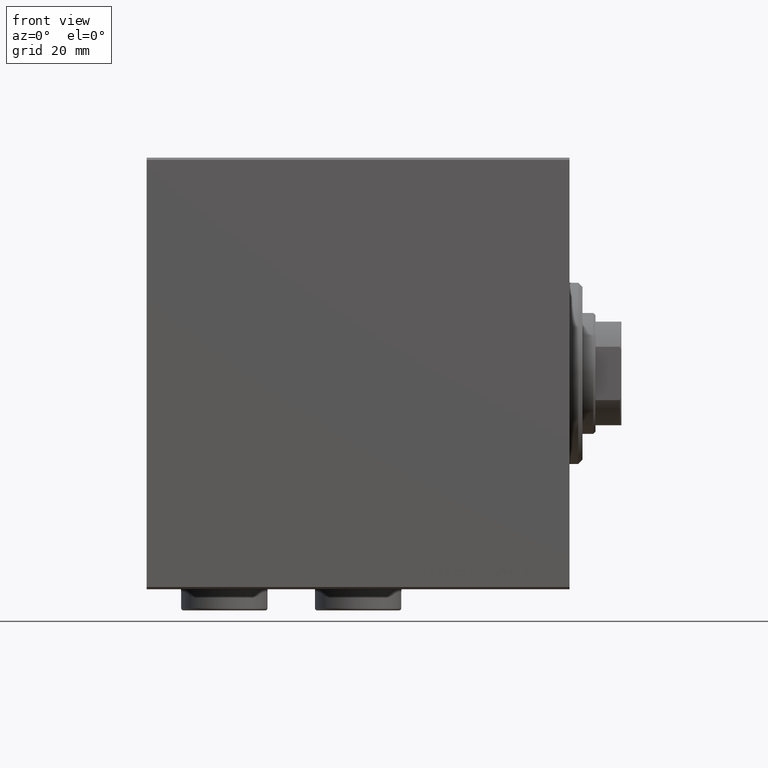
[diagram: clean part render]
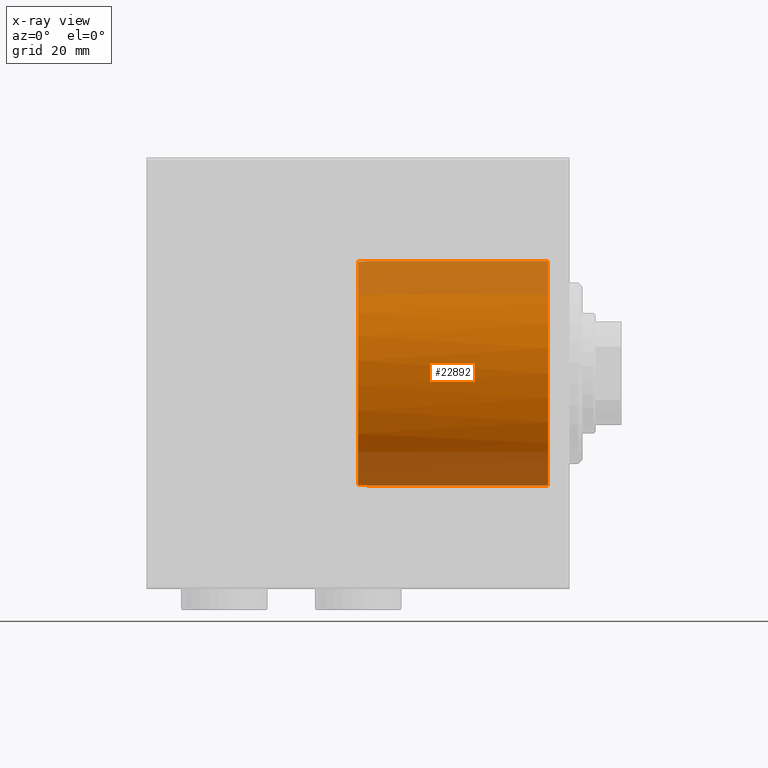
[diagram: x-ray — body ghosted, one internal face saturated and labeled with its STEP entity id]
A machine part, front view, then the same camera in x-ray: the body is ghosted and one INTERNAL B-rep face — a face not visible from any outside direction — is saturated and labeled: STEP entity #22892.
In plain terms, the highlighted cylindrical surface (partial cylindrical patch) has radius 26 mm, axis along (1, -0, 0).
Its self-contained STEP definition (entity closure, byte-faithful):
#938 = AXIS2_PLACEMENT_3D ( 'NONE', #45627, #25832, #28865 ) ;
#1554 = CYLINDRICAL_SURFACE ( 'NONE', #29709, 26.00000000000000355 ) ;
#1577 = CARTESIAN_POINT ( 'NONE',  ( 46.62795462308692152, -0.8061857280105739765, 25.98793459048009424 ) ) ;
#2124 = CARTESIAN_POINT ( 'NONE',  ( 46.50000000000000711, -0.1632048367001796285, -26.00000000000001066 ) ) ;
#2810 = CARTESIAN_POINT ( 'NONE',  ( 47.74713917450439027, -2.169571424906405532, -25.90948189110790167 ) ) ;
#3056 = B_SPLINE_CURVE_WITH_KNOTS ( 'NONE', 3,
 ( #38118, #37892, #6058, #27439, #41632, #6285, #2810, #23034, #19756, #16964, #31153, #45349, #37211, #5389, #19538, #33946, #2124, #30469 ),
 .UNSPECIFIED., .F., .F.,
 ( 4, 2, 2, 2, 2, 2, 2, 2, 4 ),
 ( 0.000000000000000000, 0.0004889038340697617752, 0.0009778076681395235503, 0.001466711502209285325, 0.001955615336279047101, 0.002444519170348808876, 0.002933423004418570651, 0.003422326838488332426, 0.003911230672558094201 ),
 .UNSPECIFIED. ) ;
#3620 = VECTOR ( 'NONE', #7267, 1000.000000000000000 ) ;
#3917 = CARTESIAN_POINT ( 'NONE',  ( 46.50000000000000000, -1.796472939459810184E-23, 26.00000000000000355 ) ) ;
#4698 = DIRECTION ( 'NONE',  ( 0.000000000000000000, 0.000000000000000000, 1.000000000000000000 ) ) ;
#5264 = DIRECTION ( 'NONE',  ( -1.000000000000000000, -0.000000000000000000, -0.000000000000000000 ) ) ;
#5289 = CARTESIAN_POINT ( 'NONE',  ( 47.01297106214286003, -1.526029034057477807, 25.95553860499968124 ) ) ;
#5389 = CARTESIAN_POINT ( 'NONE',  ( 46.62793841299855302, -0.8061310401765081624, -25.98793611466011555 ) ) ;
#6058 = CARTESIAN_POINT ( 'NONE',  ( 48.67213913165271322, -2.483762860601321787, -25.88111169265567213 ) ) ;
#6140 = ORIENTED_EDGE ( 'NONE', *, *, #17082, .T. ) ;
#6285 = CARTESIAN_POINT ( 'NONE',  ( 47.89073077407087453, -2.246416265527503953, -25.90284905351749245 ) ) ;
#6293 = ORIENTED_EDGE ( 'NONE', *, *, #31927, .F. ) ;
#6640 = CARTESIAN_POINT ( 'NONE',  ( 48.67227445165369915, -2.483780978192544620, 25.88110994440602042 ) ) ;
#7267 = DIRECTION ( 'NONE',  ( -1.000000000000000000, -0.000000000000000000, -0.000000000000000000 ) ) ;
#7474 = EDGE_CURVE ( 'NONE', #16384, #23776, #3056, .T. ) ;
#8791 = DIRECTION ( 'NONE',  ( -1.000000000000000000, -0.000000000000000000, -0.000000000000000000 ) ) ;
#9656 = CARTESIAN_POINT ( 'NONE',  ( 46.51583617535392534, -0.3255658700105529824, 25.99846250072058496 ) ) ;
#10798 = CARTESIAN_POINT ( 'NONE',  ( 47.34693974846521769, -1.882544160077678219, 25.93201472526049756 ) ) ;
#10965 = CARTESIAN_POINT ( 'NONE',  ( 5.000000000000000000, 3.184081677783118585E-15, -26.00000000000000355 ) ) ;
#11209 = ORIENTED_EDGE ( 'NONE', *, *, #14772, .T. ) ;
#12890 = CARTESIAN_POINT ( 'NONE',  ( 48.99999999999999289, 0.000000000000000000, 0.000000000000000000 ) ) ;
#14300 = CARTESIAN_POINT ( 'NONE',  ( 47.89086699118785617, -2.246479982575416035, 25.90284346713514907 ) ) ;
#14772 = EDGE_CURVE ( 'NONE', #44195, #15034, #45811, .T. ) ;
#14829 = B_SPLINE_CURVE_WITH_KNOTS ( 'NONE', 3,
 ( #27324, #41515, #9656, #19216, #1577, #15726, #40600, #5289, #21029, #10798, #41750, #17542, #14300, #34983, #31964, #6640, #38469, #45699 ),
 .UNSPECIFIED., .F., .F.,
 ( 4, 2, 2, 2, 2, 2, 2, 2, 4 ),
 ( 0.007820654687069023003, 0.008309569309530018960, 0.008798483931991014917, 0.009287398554452010874, 0.009776313176913006830, 0.01026522779937400279, 0.01075414242183499874, 0.01124305704429599470, 0.01173197166675699066 ),
 .UNSPECIFIED. ) ;
#14904 = DIRECTION ( 'NONE',  ( -1.000000000000000000, 0.000000000000000000, 0.000000000000000000 ) ) ;
#15034 = VERTEX_POINT ( 'NONE', #39020 ) ;
#15726 = CARTESIAN_POINT ( 'NONE',  ( 46.75262534503168865, -1.107177428594329882, 25.97685196186657564 ) ) ;
#16384 = VERTEX_POINT ( 'NONE', #36637 ) ;
#16905 = CARTESIAN_POINT ( 'NONE',  ( 48.99999999999999289, -2.500000000000019540, 25.87952858921506305 ) ) ;
#16964 = CARTESIAN_POINT ( 'NONE',  ( 47.11633526003846839, -1.651783113730551422, -25.94773543709675678 ) ) ;
#17082 = EDGE_CURVE ( 'NONE', #45412, #32487, #14829, .T. ) ;
#17481 = LINE ( 'NONE', #35829, #3620 ) ;
#17542 = CARTESIAN_POINT ( 'NONE',  ( 47.74728814243972863, -2.169657715646846619, 25.90947464024000624 ) ) ;
#18551 = CARTESIAN_POINT ( 'NONE',  ( 48.99999999999999289, 0.000000000000000000, 26.00000000000000355 ) ) ;
#19216 = CARTESIAN_POINT ( 'NONE',  ( 46.57991866312166707, -0.6482818571340246416, 25.99241766690434474 ) ) ;
#19538 = CARTESIAN_POINT ( 'NONE',  ( 46.57994581485352370, -0.6484030031399271587, -25.99241511668976301 ) ) ;
#19756 = CARTESIAN_POINT ( 'NONE',  ( 47.34681529442086401, -1.882434762911839643, -25.93202269649926350 ) ) ;
#21029 = CARTESIAN_POINT ( 'NONE',  ( 47.11644282775269943, -1.651905895843509997, 25.94772759100586867 ) ) ;
#22036 = LINE ( 'NONE', #18551, #38710 ) ;
#22344 = CARTESIAN_POINT ( 'NONE',  ( 5.000000000000000000, 0.000000000000000000, 0.000000000000000000 ) ) ;
#22588 = ORIENTED_EDGE ( 'NONE', *, *, #7474, .T. ) ;
#22892 = ADVANCED_FACE ( 'NONE', ( #40574 ), #1554, .F. ) ;
#23034 = CARTESIAN_POINT ( 'NONE',  ( 47.47539377652167758, -1.988033269128851366, -25.92404319843367944 ) ) ;
#23776 = VERTEX_POINT ( 'NONE', #32974 ) ;
#25451 = ORIENTED_EDGE ( 'NONE', *, *, #31350, .F. ) ;
#25832 = DIRECTION ( 'NONE',  ( -1.000000000000000000, 0.000000000000000000, 0.000000000000000000 ) ) ;
#27324 = CARTESIAN_POINT ( 'NONE',  ( 46.50000000000000000, -1.796472939459810184E-23, 26.00000000000000355 ) ) ;
#27439 = CARTESIAN_POINT ( 'NONE',  ( 48.35239313040842291, -2.420160333356796478, -25.88713665812166198 ) ) ;
#28005 = AXIS2_PLACEMENT_3D ( 'NONE', #22344, #14904, #4698 ) ;
#28865 = DIRECTION ( 'NONE',  ( 0.000000000000000000, 0.000000000000000000, 1.000000000000000000 ) ) ;
#29709 = AXIS2_PLACEMENT_3D ( 'NONE', #12890, #5264, #44755 ) ;
#30469 = CARTESIAN_POINT ( 'NONE',  ( 46.50000000000000000, 3.184081639590435214E-15, -26.00000000000000355 ) ) ;
#30754 = EDGE_LOOP ( 'NONE', ( #22588, #38701, #11209, #25451, #6140, #6293 ) ) ;
#31153 = CARTESIAN_POINT ( 'NONE',  ( 47.01288410097976822, -1.525912000670203161, -25.95554535210804303 ) ) ;
#31350 = EDGE_CURVE ( 'NONE', #45412, #15034, #22036, .T. ) ;
#31927 = EDGE_CURVE ( 'NONE', #16384, #32487, #41010, .T. ) ;
#31964 = CARTESIAN_POINT ( 'NONE',  ( 48.35251734720075234, -2.420193834591356286, 25.88713351657672845 ) ) ;
#32487 = VERTEX_POINT ( 'NONE', #16905 ) ;
#32974 = CARTESIAN_POINT ( 'NONE',  ( 46.50000000000000000, 3.184081639590435214E-15, -26.00000000000000355 ) ) ;
#33946 = CARTESIAN_POINT ( 'NONE',  ( 46.51582698692548945, -0.3255351818746884951, -25.99846335647869111 ) ) ;
#34983 = CARTESIAN_POINT ( 'NONE',  ( 48.19357266735823941, -2.372029363333639562, 25.89164824213594329 ) ) ;
#35829 = CARTESIAN_POINT ( 'NONE',  ( 48.99999999999999289, 3.184081677783118585E-15, -26.00000000000000355 ) ) ;
#36637 = CARTESIAN_POINT ( 'NONE',  ( 48.99999999999999289, -2.499999999999999112, -25.87952858921507016 ) ) ;
#37211 = CARTESIAN_POINT ( 'NONE',  ( 46.75257165897365752, -1.107063357904832790, -25.97685665116501141 ) ) ;
#37892 = CARTESIAN_POINT ( 'NONE',  ( 48.83467817174352632, -2.499999999999998668, -25.87952858921506305 ) ) ;
#38118 = CARTESIAN_POINT ( 'NONE',  ( 48.99999999999999289, -2.499999999999999112, -25.87952858921507016 ) ) ;
#38469 = CARTESIAN_POINT ( 'NONE',  ( 48.83477254102518827, -2.500000000000020428, 25.87952858921507371 ) ) ;
#38701 = ORIENTED_EDGE ( 'NONE', *, *, #45230, .T. ) ;
#38710 = VECTOR ( 'NONE', #8791, 1000.000000000000000 ) ;
#39020 = CARTESIAN_POINT ( 'NONE',  ( 5.000000000000000000, 0.000000000000000000, 26.00000000000000355 ) ) ;
#40574 = FACE_OUTER_BOUND ( 'NONE', #30754, .T. ) ;
#40600 = CARTESIAN_POINT ( 'NONE',  ( 46.83017875354468629, -1.252567112413196071, 25.97017182302258220 ) ) ;
#41010 = CIRCLE ( 'NONE', #938, 26.00000000000000355 ) ;
#41515 = CARTESIAN_POINT ( 'NONE',  ( 46.50000000000000711, -0.1632508128424748906, 26.00000000000001066 ) ) ;
#41632 = CARTESIAN_POINT ( 'NONE',  ( 48.19352101961040802, -2.372015157584302258, -25.89164960406209559 ) ) ;
#41750 = CARTESIAN_POINT ( 'NONE',  ( 47.47552450085674991, -1.988133811806928053, 25.92403546291849636 ) ) ;
#44195 = VERTEX_POINT ( 'NONE', #10965 ) ;
#44755 = DIRECTION ( 'NONE',  ( 0.000000000000000000, 0.000000000000000000, 1.000000000000000000 ) ) ;
#45230 = EDGE_CURVE ( 'NONE', #23776, #44195, #17481, .T. ) ;
#45349 = CARTESIAN_POINT ( 'NONE',  ( 46.83014300857264089, -1.252500565541644351, -25.97017489915007360 ) ) ;
#45412 = VERTEX_POINT ( 'NONE', #3917 ) ;
#45627 = CARTESIAN_POINT ( 'NONE',  ( 48.99999999999999289, 0.000000000000000000, 0.000000000000000000 ) ) ;
#45699 = CARTESIAN_POINT ( 'NONE',  ( 48.99999999999999289, -2.500000000000019540, 25.87952858921506305 ) ) ;
#45811 = CIRCLE ( 'NONE', #28005, 26.00000000000000355 ) ;